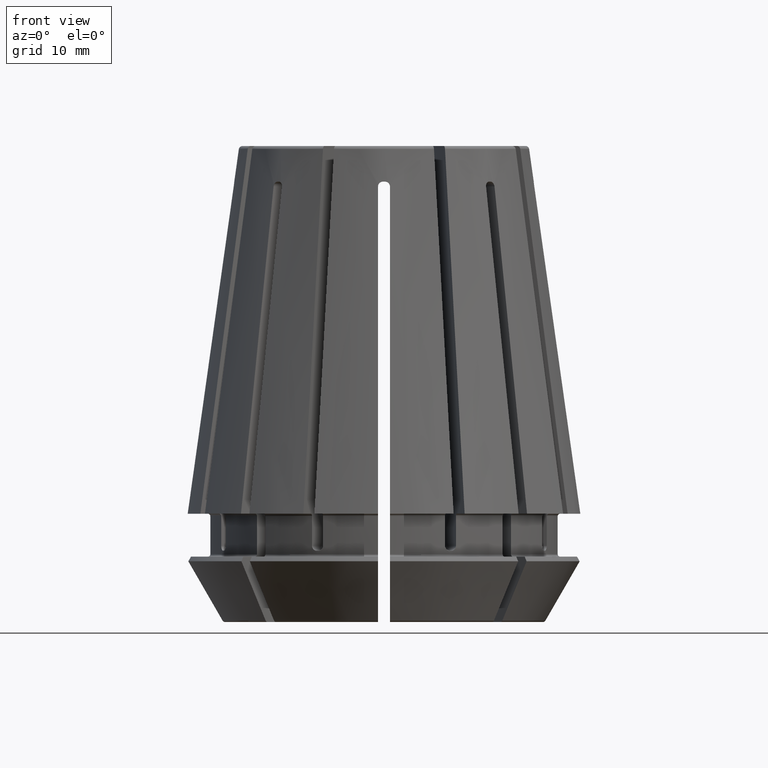
[diagram: clean part render]
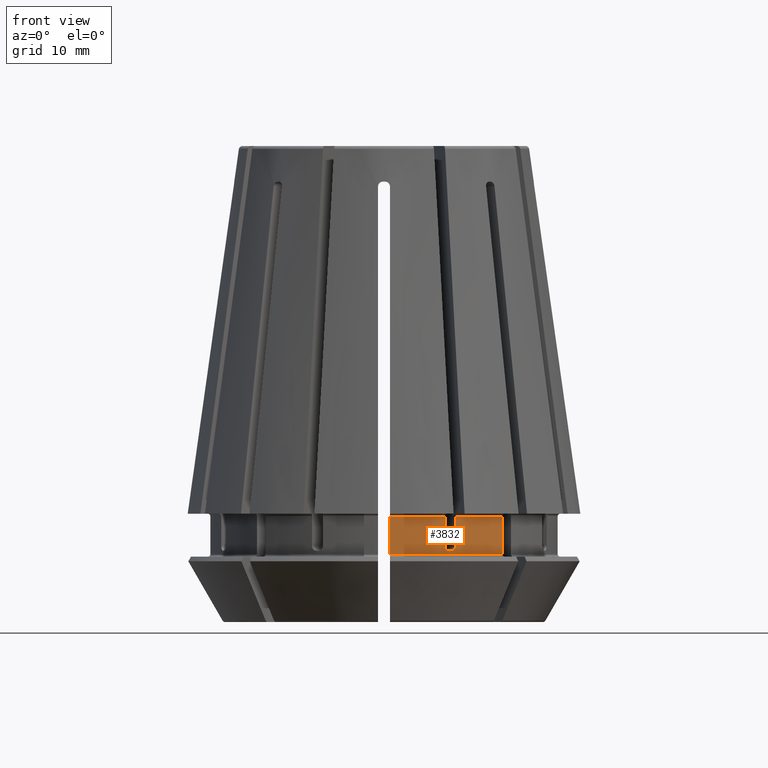
[diagram: same view with one face highlighted and labeled with its STEP entity id]
A machine part, front view. The second image highlights one B-rep face of the part: STEP entity #3832.
In plain terms, the highlighted cylindrical surface (partial cylindrical patch) has radius 14.6 mm, axis along (0, 0, -1).
Its self-contained STEP definition (entity closure, byte-faithful):
#47=CYLINDRICAL_SURFACE('',#4130,14.6);
#131=LINE('',#5996,#355);
#132=LINE('',#6010,#356);
#133=LINE('',#6011,#357);
#134=LINE('',#6012,#358);
#355=VECTOR('',#4706,1000.);
#356=VECTOR('',#4709,1000.);
#357=VECTOR('',#4710,1000.);
#358=VECTOR('',#4711,1000.);
#626=CIRCLE('',#4015,14.6);
#696=CIRCLE('',#4129,14.6);
#697=CIRCLE('',#4131,14.6);
#698=CIRCLE('',#4132,14.6);
#1025=ORIENTED_EDGE('',*,*,#2241,.F.);
#1026=ORIENTED_EDGE('',*,*,#2242,.F.);
#1027=ORIENTED_EDGE('',*,*,#2243,.T.);
#1028=ORIENTED_EDGE('',*,*,#2244,.F.);
#1029=ORIENTED_EDGE('',*,*,#2245,.T.);
#1030=ORIENTED_EDGE('',*,*,#2246,.T.);
#1031=ORIENTED_EDGE('',*,*,#2072,.F.);
#1032=ORIENTED_EDGE('',*,*,#2247,.F.);
#1033=ORIENTED_EDGE('',*,*,#2240,.T.);
#1034=ORIENTED_EDGE('',*,*,#2248,.T.);
#2072=EDGE_CURVE('',#2696,#2694,#626,.T.);
#2240=EDGE_CURVE('',#2831,#2832,#696,.T.);
#2241=EDGE_CURVE('',#2833,#2834,#697,.T.);
#2242=EDGE_CURVE('',#2835,#2833,#131,.T.);
#2243=EDGE_CURVE('',#2835,#2836,#3159,.T.);
#2244=EDGE_CURVE('',#2837,#2836,#698,.T.);
#2245=EDGE_CURVE('',#2837,#2838,#3160,.T.);
#2246=EDGE_CURVE('',#2838,#2694,#132,.T.);
#2247=EDGE_CURVE('',#2831,#2696,#133,.T.);
#2248=EDGE_CURVE('',#2832,#2834,#134,.T.);
#2694=VERTEX_POINT('',#5473);
#2696=VERTEX_POINT('',#5480);
#2831=VERTEX_POINT('',#5985);
#2832=VERTEX_POINT('',#5990);
#2833=VERTEX_POINT('',#5994);
#2834=VERTEX_POINT('',#5995);
#2835=VERTEX_POINT('',#5997);
#2836=VERTEX_POINT('',#6002);
#2837=VERTEX_POINT('',#6004);
#2838=VERTEX_POINT('',#6009);
#3159=B_SPLINE_CURVE_WITH_KNOTS('',3,(#5998,#5999,#6000,#6001),
 .UNSPECIFIED.,.F.,.F.,(4,4),(8.67361737988404E-19,0.000624924971581356),
 .UNSPECIFIED.);
#3160=B_SPLINE_CURVE_WITH_KNOTS('',3,(#6005,#6006,#6007,#6008),
 .UNSPECIFIED.,.F.,.F.,(4,4),(7.80625564189563E-18,0.000624924882220628),
 .UNSPECIFIED.);
#3356=EDGE_LOOP('',(#1025,#1026,#1027,#1028,#1029,#1030,#1031,#1032,#1033,
#1034));
#3566=FACE_BOUND('',#3356,.T.);
#3832=ADVANCED_FACE('',(#3566),#47,.T.);
#4015=AXIS2_PLACEMENT_3D('',#5481,#4426,#4427);
#4129=AXIS2_PLACEMENT_3D('',#5991,#4700,#4701);
#4130=AXIS2_PLACEMENT_3D('',#5992,#4702,#4703);
#4131=AXIS2_PLACEMENT_3D('',#5993,#4704,#4705);
#4132=AXIS2_PLACEMENT_3D('',#6003,#4707,#4708);
#4426=DIRECTION('',(-2.25438335333768E-18,0.,1.));
#4427=DIRECTION('',(1.,0.,2.25438335333768E-18));
#4700=DIRECTION('',(-2.25438335333768E-18,0.,1.));
#4701=DIRECTION('',(1.,0.,2.25438335333768E-18));
#4702=DIRECTION('',(2.25438335333768E-18,0.,-1.));
#4703=DIRECTION('',(1.,0.,2.25438335333768E-18));
#4704=DIRECTION('',(-2.25438335333768E-18,0.,1.));
#4705=DIRECTION('',(1.,0.,2.25438335333768E-18));
#4706=DIRECTION('',(-2.25438335333768E-18,0.,1.));
#4707=DIRECTION('',(0.,0.,1.));
#4708=DIRECTION('',(1.,0.,0.));
#4709=DIRECTION('',(-2.25438335333768E-18,0.,1.));
#4710=DIRECTION('',(-2.25438335333768E-18,0.,1.));
#4711=DIRECTION('',(-2.25438335333768E-18,0.,1.));
#5473=CARTESIAN_POINT('',(5.1219609857979,-13.6720706427356,9.1000000000001));
#5480=CARTESIAN_POINT('',(0.500000000000001,-14.5914358443575,9.1));
#5481=CARTESIAN_POINT('',(-2.05148885153729E-17,0.,9.1));
#5985=CARTESIAN_POINT('',(0.500000000000001,-14.5914358443575,5.9));
#5990=CARTESIAN_POINT('',(9.96414984220002,-10.6712566233866,5.8999999999999));
#5991=CARTESIAN_POINT('',(-1.33008617846923E-17,0.,5.9));
#5992=CARTESIAN_POINT('',(-7.66490340134812E-17,0.,34.));
#5993=CARTESIAN_POINT('',(-2.05148885153729E-17,0.,9.1));
#5994=CARTESIAN_POINT('',(6.04584051830919,-13.2893872103705,9.1000000000001));
#5995=CARTESIAN_POINT('',(9.96414984220035,-10.6712566233869,9.1));
#5996=CARTESIAN_POINT('',(6.04584051830937,-13.2893872103709,34.));
#5997=CARTESIAN_POINT('',(6.04584051830937,-13.2893872103709,6.6));
#5998=CARTESIAN_POINT('',(6.04584051830935,-13.2893872103709,6.6));
#5999=CARTESIAN_POINT('',(6.04584051830935,-13.2893872103709,6.38869136014373));
#6000=CARTESIAN_POINT('',(5.87409956315108,-13.3678571704476,6.20000000000001));
#6001=CARTESIAN_POINT('',(5.67943500827437,-13.4500564306172,6.2));
#6002=CARTESIAN_POINT('',(5.67943500827435,-13.4500564306172,6.2));
#6003=CARTESIAN_POINT('',(-1.39771767906936E-17,0.,6.2));
#6004=CARTESIAN_POINT('',(5.49465910177211,-13.5265931170902,6.2));
#6005=CARTESIAN_POINT('',(5.49465910177211,-13.5265931170902,6.2));
#6006=CARTESIAN_POINT('',(5.29888613194446,-13.6061183694012,6.19999999999999));
#6007=CARTESIAN_POINT('',(5.12196098579808,-13.672070642736,6.38869105177663));
#6008=CARTESIAN_POINT('',(5.12196098579808,-13.672070642736,6.6));
#6009=CARTESIAN_POINT('',(5.12196098579808,-13.672070642736,6.6));
#6010=CARTESIAN_POINT('',(5.12196098579808,-13.672070642736,34.));
#6011=CARTESIAN_POINT('',(0.5,-14.5914358443575,34.));
#6012=CARTESIAN_POINT('',(9.96414984220035,-10.6712566233869,34.));